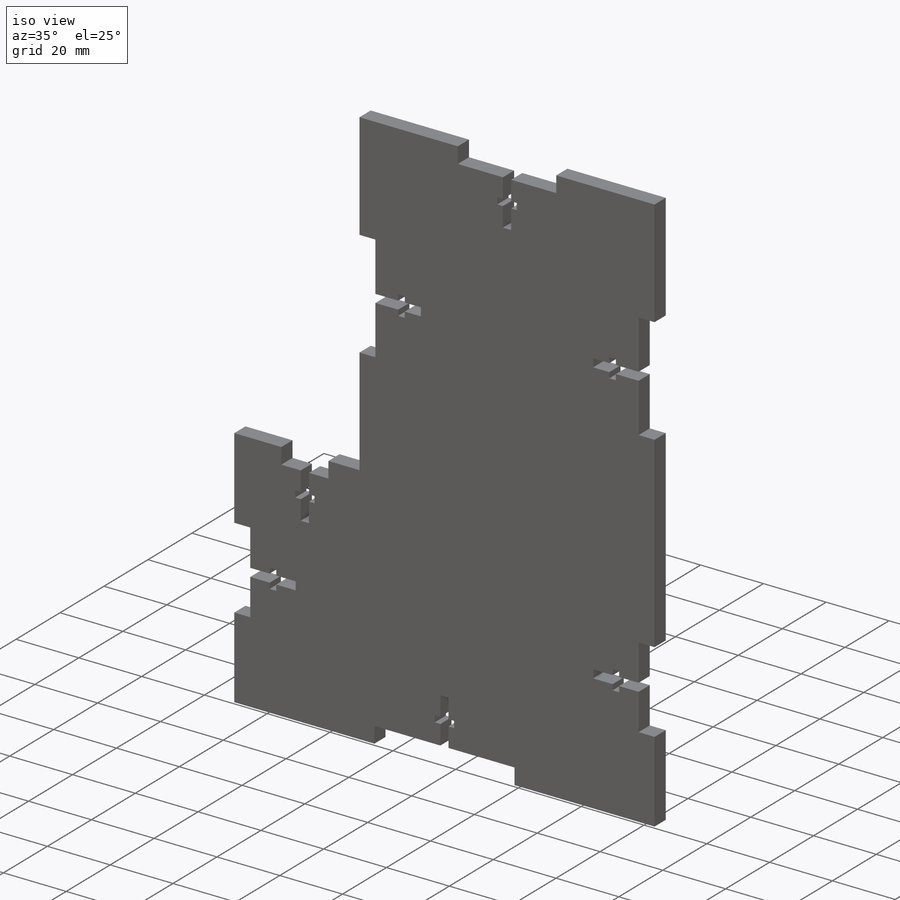
[diagram: iso view]
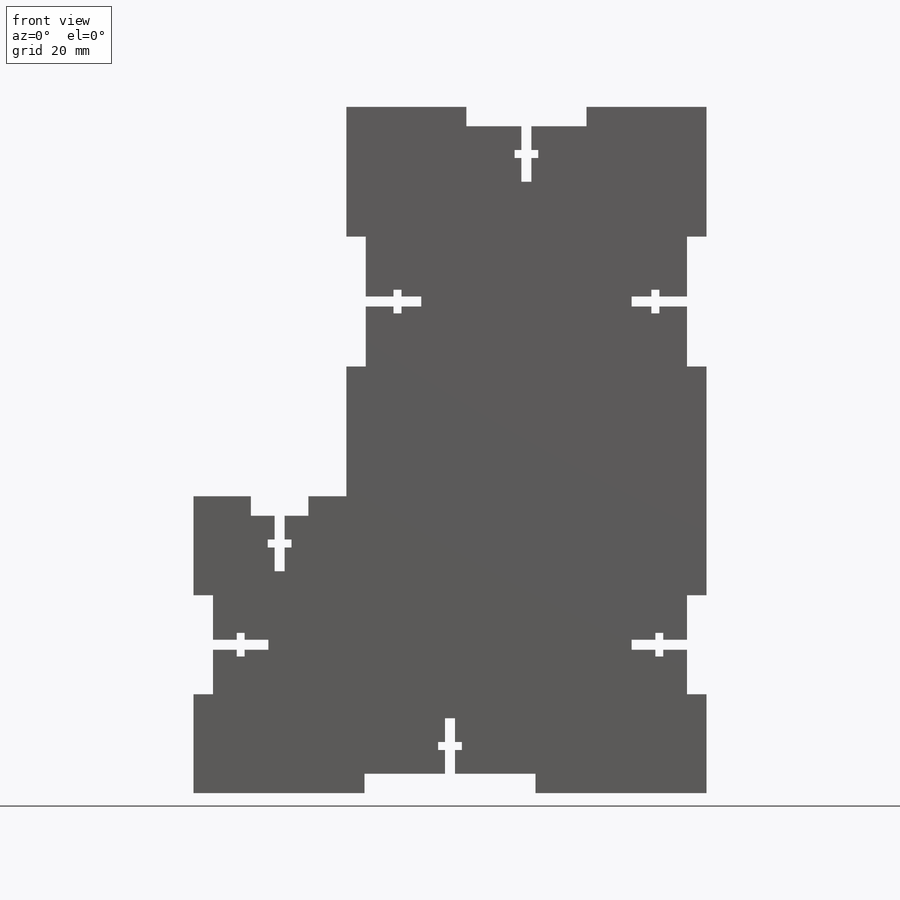
[diagram: front view]
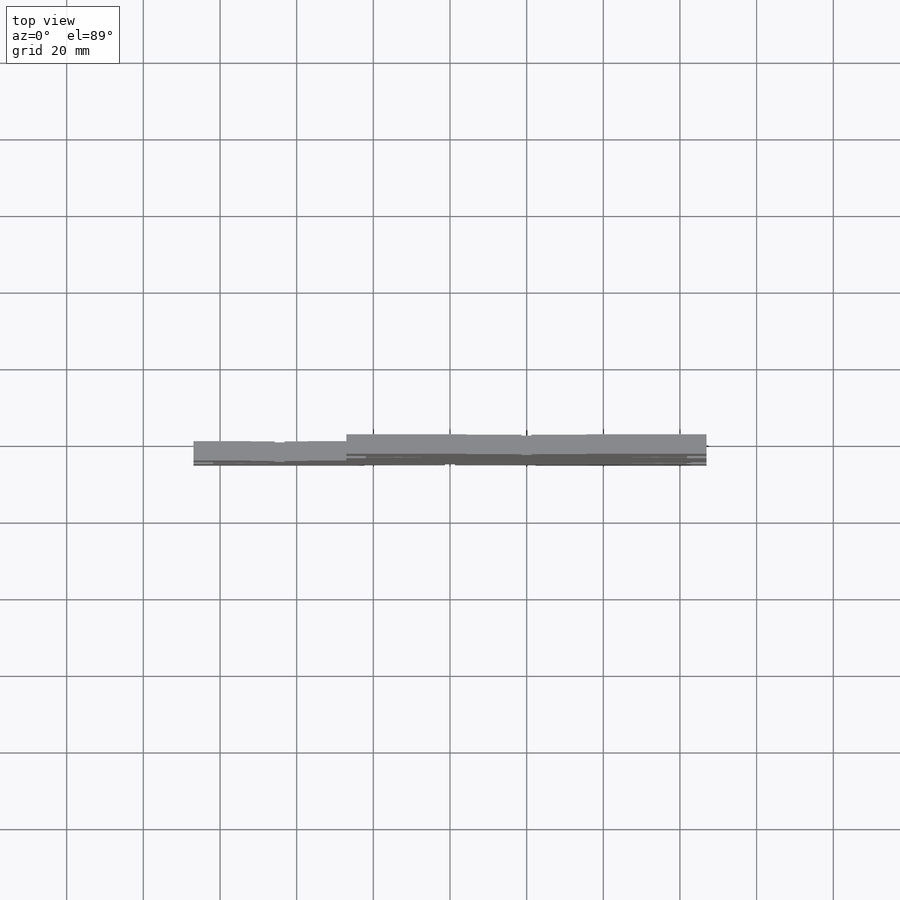
[diagram: top view]
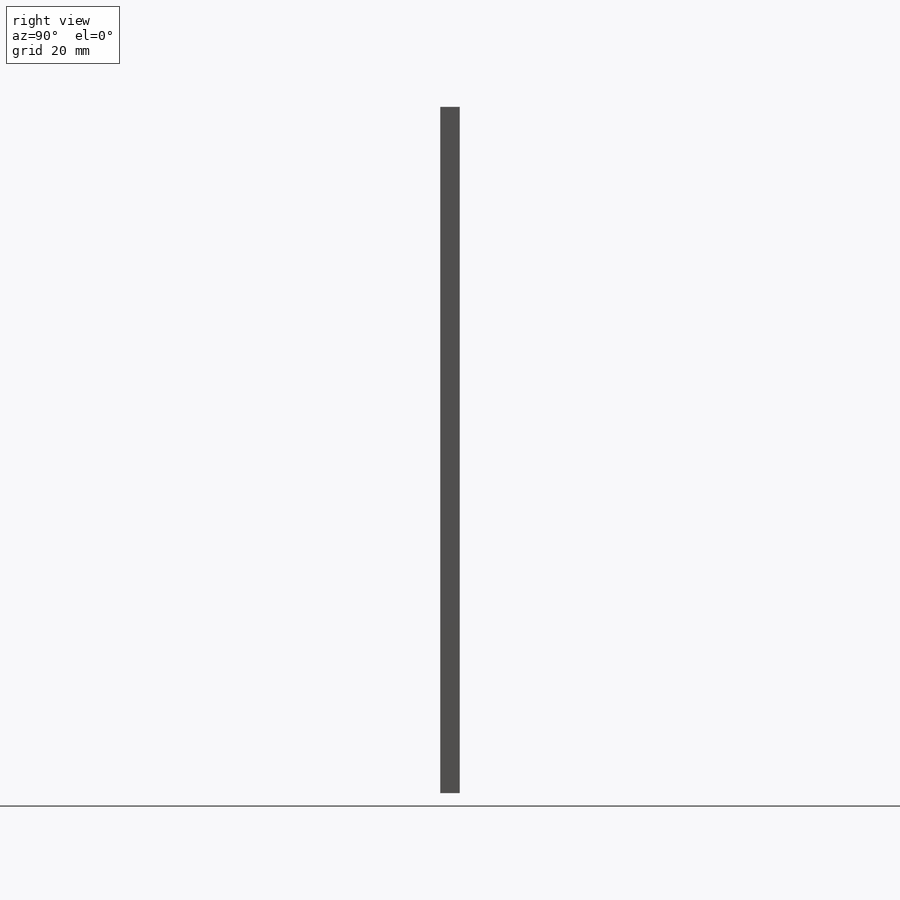
[diagram: right view]
SOLIDWORKS PART (.sldprt)
format: sldprt  version: not decoded by parser v0  size: 485,888 bytes
history: native  units: mm
features: sketch x11, cut_extrude x9, extrude x2, material x1 (+11 scaffold rows collapsed)
feature tree (34):
  scaffold x11  (default folders/planes/origin — collapsed)
  material  "Mahogany"
  sketch  "Sketch1"  dims[D1=129.9464mm D2=83.9724mm]
  extrude  "Boss-Extrude1"  Depth=5.7912mm
  sketch  "Sketch2"  dims[D1=~9.872133mm D2=5.7912mm D3=~9.872133mm D4=~41.486667mm]
  cut_extrude  "Cut-Extrude1"  [1 undecoded]
  sketch  "Sketch3"  dims[D1=5.7912mm D2=27.9908mm D3=27.9908mm]
  cut_extrude  "Cut-Extrude2"  [1 undecoded]
  sketch  "Sketch4"  dims[c1.D1=~1.30175mm c1.D2=2.794mm c1.D3=5.588mm c1.D4=~3.619491mm c2.D3=~3.619491mm c2.D4=5.588mm c3.D3=~3.619491mm c3.D4=~3.619491mm c4.D3=~3.619491mm c4.D4=~3.619491mm c5.D3=~3.619491mm c5.D4=~3.619491mm c5.D2=19.558mm]
  cut_extrude  "Cut-Extrude3"  [1 undecoded]
  sketch  "Sketch6"  dims[D1=6.1722mm D2=2.0828mm D3=2.0828mm D4=6.1722mm D5=2.6035mm D6=~1.78435mm]
  cut_extrude  "Cut-Extrude5"  [1 undecoded]
  sketch  "Sketch7"  dims[D1=82.55mm D2=106.1212mm D3=0.0mm]
  extrude  "Boss-Extrude2"  Depth=5.7912mm
  sketch  "Sketch8"  dims[D1=5.7912mm D2=~43.315467mm D3=~43.315467mm]
  cut_extrude  "Cut-Extrude6"  [1 undecoded]
  sketch  "Sketch12"  dims[D1=5.7912mm D2=~27.516667mm D3=~27.516667mm]
  cut_extrude  "Cut-Extrude9"  [1 undecoded]
  sketch  "Sketch13"  dims[c1.D1=14.478mm c1.D2=2.6035mm c2.D1=14.478mm c2.D2=2.6035mm c3.D1=2.6035mm c3.D2=13.7668mm c3.D3=2.6035mm c3.D4=19.558mm]
  cut_extrude  "Cut-Extrude10"  [1 undecoded]
  sketch  "Sketch14"  dims[D1=2.0828mm D2=6.1722mm D3=6.8834mm D4=~1.78435mm D5=2.0828mm D6=6.1722mm D7=~1.78435mm D8=12.7762mm]
  cut_extrude  "Cut-Extrude11"  [1 undecoded]
  sketch  "Sketch15"  dims[D1=5.7912mm D2=~35.373733mm D3=~35.373733mm]
  cut_extrude  "Cut-Extrude12"  [1 undecoded]
decode coverage: 13 of 22 modeling features carry decoded parameters
note: ~ marks probable driven/reference dimensions
note: 9 parameter values undecoded
summary: no parameter record found for 9 features
note: suppression state not decoded; provenance and decode notes live in map.json
